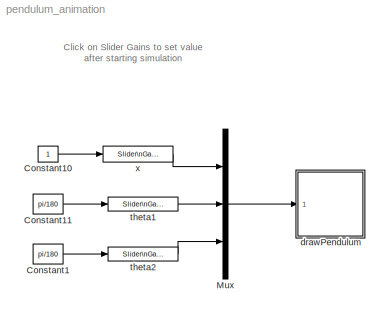
MODEL pendulum_animation
KIND model
BLOCK [Constant] Constant1
  SID = 14
  Value = pi/180
BLOCK [Constant] Constant10
  SID = 1
BLOCK [Constant] Constant11
  SID = 2
  Value = pi/180
BLOCK [Mux] Mux
  DisplayOption = bar
  Inputs = 3
  Ports = [3, 1]
  SID = 3
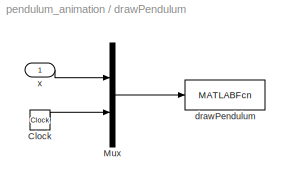
BLOCK [SubSystem] drawPendulum
  Ports = [1]
  RequestExecContextInheritance = off
  SID = 4
BLOCK [Clock] drawPendulum/Clock
  SID = 6
BLOCK [Mux] drawPendulum/Mux
  DisplayOption = bar
  Inputs = 2
  Ports = [2, 1]
  SID = 7
BLOCK [MATLABFcn] drawPendulum/drawPendulum
  MATLABFcn = drawPendulum(u)
  OutputDimensions = 0
  Ports = [1]
  SID = 8
  SampleTime = 0.1
BLOCK [Inport] drawPendulum/x
  IconDisplay = Port number
  SID = 5
BLOCK [Reference] theta1  REF=simulink/Math\nOperations/Slider\nGain
  Ports = [1, 1]
  SID = 9
  SourceBlock = simulink/Math\nOperations/Slider\nGain
  SourceType = Slider Gain
  gain = -64.8
  high = 180
  low = -180
BLOCK [Reference] theta2  REF=simulink/Math\nOperations/Slider\nGain
  Ports = [1, 1]
  SID = 13
  SourceBlock = simulink/Math\nOperations/Slider\nGain
  SourceType = Slider Gain
  gain = -136.8
  high = 180
  low = -180
BLOCK [Reference] x  REF=simulink/Math\nOperations/Slider\nGain
  Ports = [1, 1]
  SID = 10
  SourceBlock = simulink/Math\nOperations/Slider\nGain
  SourceType = Slider Gain
  gain = -12.5
  high = 0
  low = -50
ANNOTATION (root): Click on Slider Gains to set value \nafter starting simulation
LINE Constant10:1 -> x:1
LINE Constant11:1 -> theta1:1
LINE Constant1:1 -> theta2:1
LINE Mux:1 -> drawPendulum:1
LINE drawPendulum/Clock:1 -> drawPendulum/Mux:2
LINE drawPendulum/Mux:1 -> drawPendulum/drawPendulum:1
LINE drawPendulum/x:1 -> drawPendulum/Mux:1
LINE theta1:1 -> Mux:2
LINE theta2:1 -> Mux:3
LINE x:1 -> Mux:1
